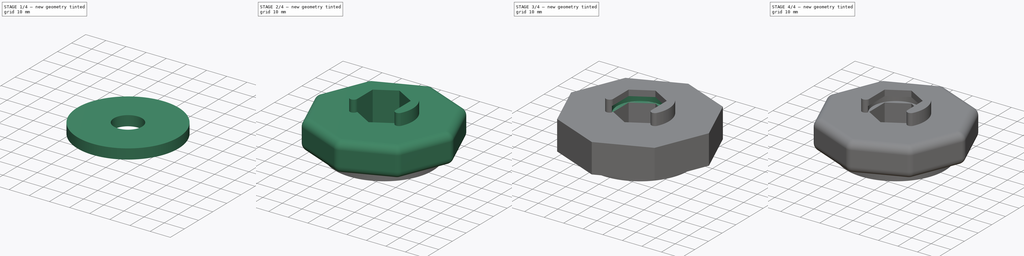
[diagram: build sequence overview — one tinted view per stage of 4, left to right]
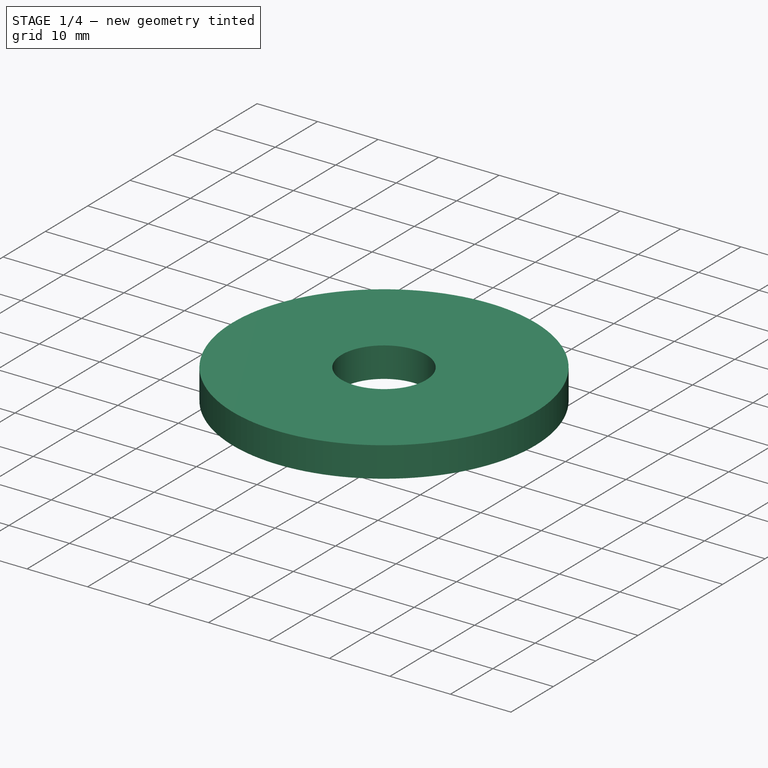
[diagram: stage 1 of 4 — iso view after this stage's code; geometry added in this stage tinted green]
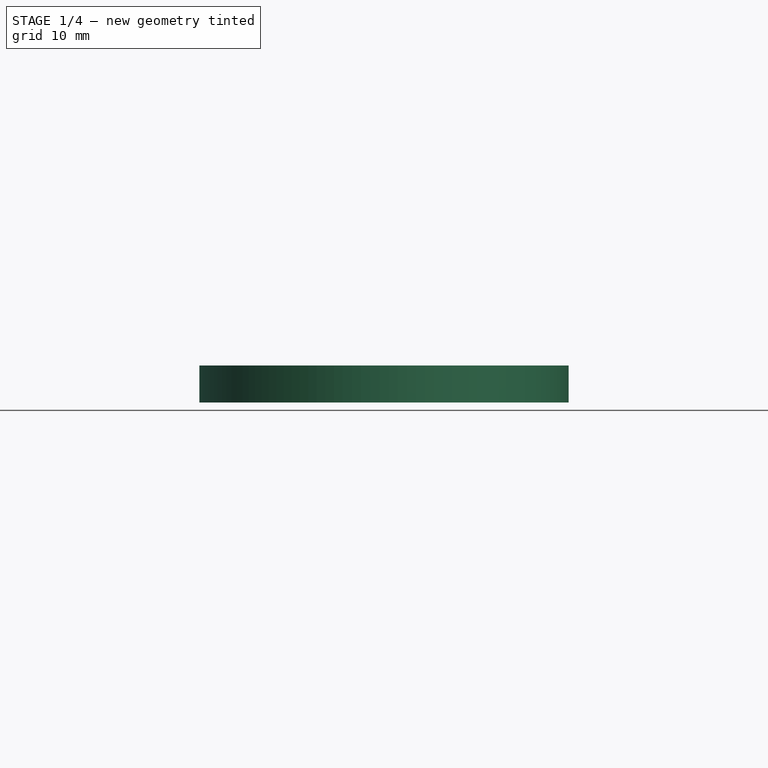
[diagram: stage 1 of 4 — front view after this stage's code; geometry added in this stage tinted green]
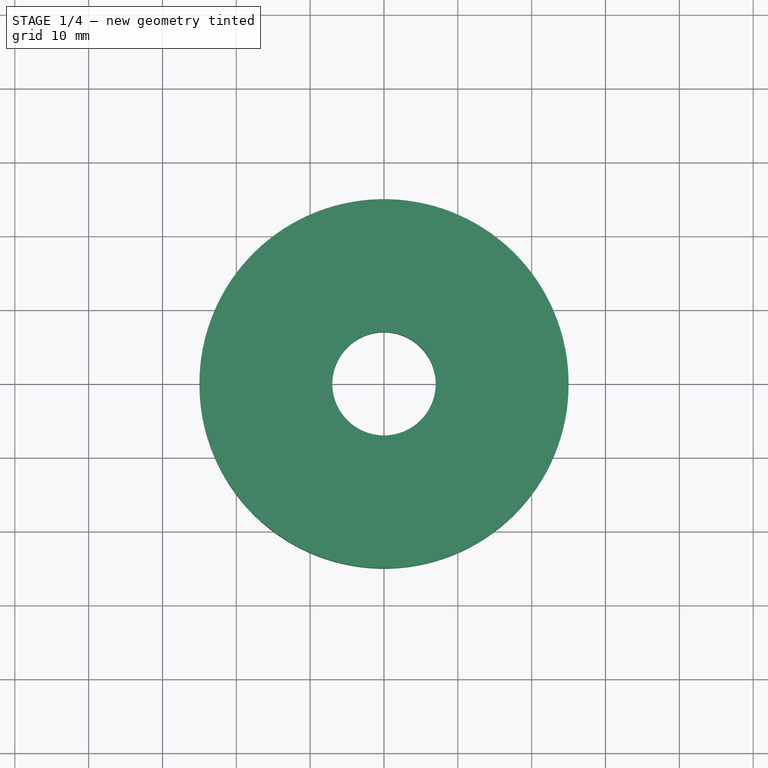
[diagram: stage 1 of 4 — top view after this stage's code; geometry added in this stage tinted green]
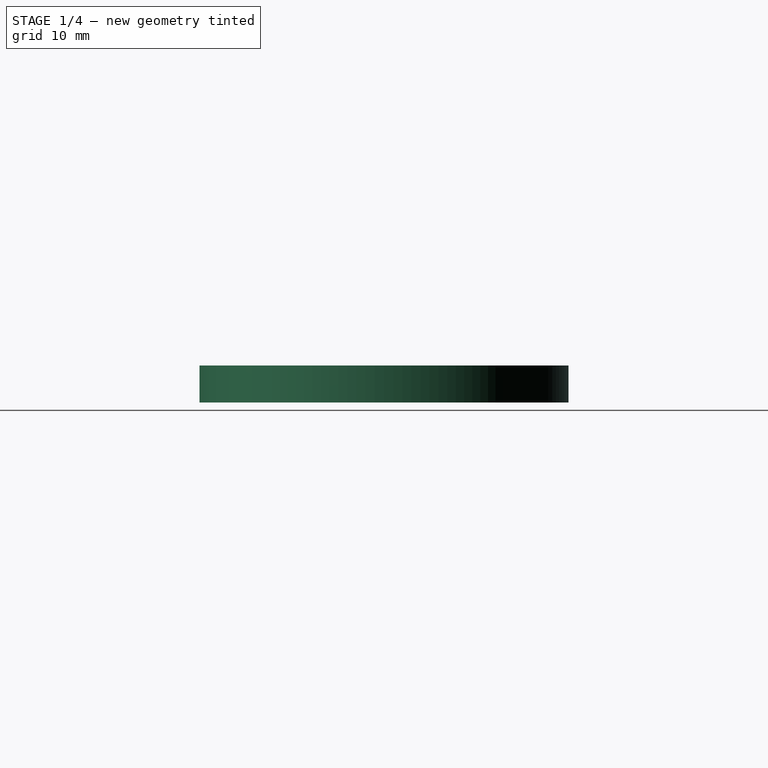
[diagram: stage 1 of 4 — right view after this stage's code; geometry added in this stage tinted green]
FCSTD DOCUMENT  (FreeCAD 0.20R29177 (Git))
Label: Hand Knobs
License: All rights reserved
LicenseURL: http://en.wikipedia.org/wiki/All_rights_reserved
objects: Sketcher::SketchObject×7, PartDesign::Pad×6, PartDesign::Body×3, PartDesign::Fillet×2, Spreadsheet::Sheet×1, PartDesign::Chamfer×1, PartDesign::Pocket×1
note: 30 computed .brp shape members not serialized (recipe doc carries the construction recipe); baked Part::Feature solids carry a one-line shape summary decoded from their .brp

FEATURE [PartDesign::Body] Body  label="Hex head Bolt"
  Group = -> [Sketch,Pad,Sketch001,Pad001,Fillet,Chamfer]
  Origin = -> Origin
  Tip = -> Chamfer
FEATURE [Sketcher::SketchObject] Sketch002
  FullyConstrained = true
  MapMode = 5
  Support = -> [XY_Plane001]
  expr: Constraints[2] = Spreadsheet.bolt_hole_size
  expr: Constraints[7] = Spreadsheet.Shoulder_diameter
  sketch-geometry (4):
    g0: Circle CenterX=0 CenterY=0 CenterZ=0 NormalX=0 NormalY=0 NormalZ=1 AngleXU=0 Radius=7
    g1: Circle CenterX=0 CenterY=0 CenterZ=0 NormalX=0 NormalY=0 NormalZ=1 AngleXU=0 Radius=25
    g2: GeomPoint X=-7 Y=0 Z=0
    g3: GeomPoint X=25 Y=0 Z=0
  constraints (8):
    c: Coincident(g0,g-1)
    c: Coincident(g1,g0)
    c: Diameter(g0) = 14
    c: PointOnObject(g2,g0)
    c: PointOnObject(g2,g-1)
    c: PointOnObject(g3,g1)
    c: PointOnObject(g3,g-1)
    c: DistanceX(g2,g3) = 32
FEATURE [PartDesign::Pad] Pad002
  Direction = (0,0,1)
  Length = 5
  Length2 = 10
  Profile = -> Sketch002
  ReferenceAxis = -> Sketch002 [N_Axis]
  Type = 0
  expr: Length = Spreadsheet.Shoulder_height
FEATURE [PartDesign::Body] Body001  label="Hex head Nut"
  Group = -> [Sketch002,Pad002,Sketch003,Pad003,Fillet001,Sketch004,Pad004,Sketch005,Pocket]
  Origin = -> Origin001
  Placement = pos=(80,0,0) rot=(0,0,1;0rad)
  Tip = -> Pocket
FEATURE [Sketcher::SketchObject] Sketch006
  FullyConstrained = true
  MapMode = 5
  Support = -> [XY_Plane002]
  expr: Constraints[11] = Spreadsheet.spring_clip_gap
  expr: Constraints[5] = Spreadsheet.springclip_inner_diameter
  expr: Constraints[6] = Spreadsheet.spring_clip_outer_diameter
  sketch-geometry (4):
    g0: ArcOfCircle CenterX=0 CenterY=0 CenterZ=0 NormalX=0 NormalY=0 NormalZ=1 AngleXU=0 Radius=11.75 StartAngle=5.01485 EndAngle=10.6931
    g1: ArcOfCircle CenterX=0 CenterY=0 CenterZ=0 NormalX=0 NormalY=0 NormalZ=1 AngleXU=0 Radius=7.5 StartAngle=5.19791 EndAngle=10.5101
    g2: LineSegment StartX=-3.5 StartY=-6.63325 StartZ=0 EndX=-3.5 EndY=-11.2166 EndZ=0
    g3: LineSegment StartX=3.5 StartY=-6.63325 StartZ=0 EndX=3.5 EndY=-11.2166 EndZ=0
  constraints (12):
    c: Coincident(g0,g-1)
    c: Coincident(g1,g0)
    c: Vertical(g2)
    c: Vertical(g3)
    c: Equal(g3,g2)
    c: Diameter(g1) = 15
    c: Diameter(g0) = 23.5
    c: Coincident(g1,g2)
    c: Coincident(g1,g3)
    c: Coincident(g0,g2)
    c: Coincident(g0,g3)
    c: Distance(g0,g0) = 7
FEATURE [PartDesign::Pad] Pad005
  Direction = (0,0,1)
  Length = 2
  Length2 = 10
  Profile = -> Sketch006
  ReferenceAxis = -> Sketch006 [N_Axis]
  Type = 0
  expr: Length = Spreadsheet.spring_clip_height_gap
FEATURE [PartDesign::Body] Body002  label="spring clip"
  Group = -> [Sketch006,Pad005]
  Origin = -> Origin002
  Placement = pos=(80,0,20) rot=(0,0,1;0rad)
  Tip = -> Pad005
  expr: .Placement.Base.x = Spreadsheet.distance_between_parts
  expr: .Placement.Base.z = Spreadsheet.springplacement
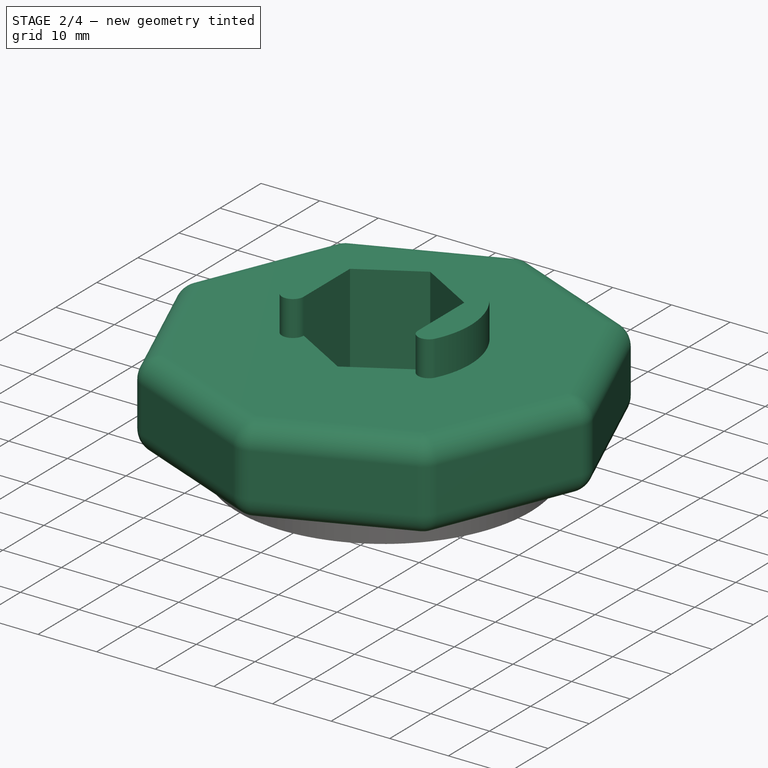
[diagram: stage 2 of 4 — iso view after this stage's code; geometry added in this stage tinted green]
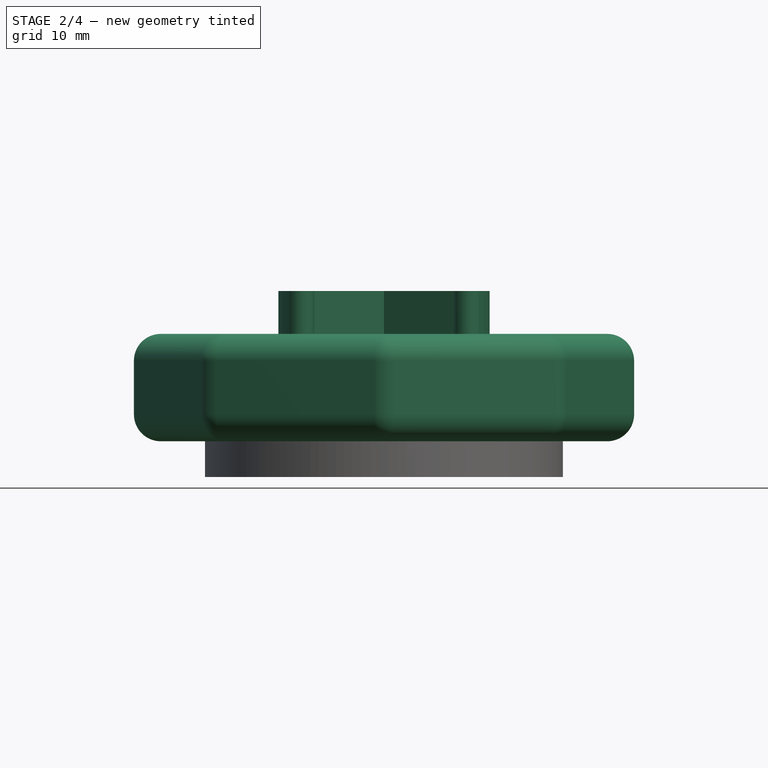
[diagram: stage 2 of 4 — front view after this stage's code; geometry added in this stage tinted green]
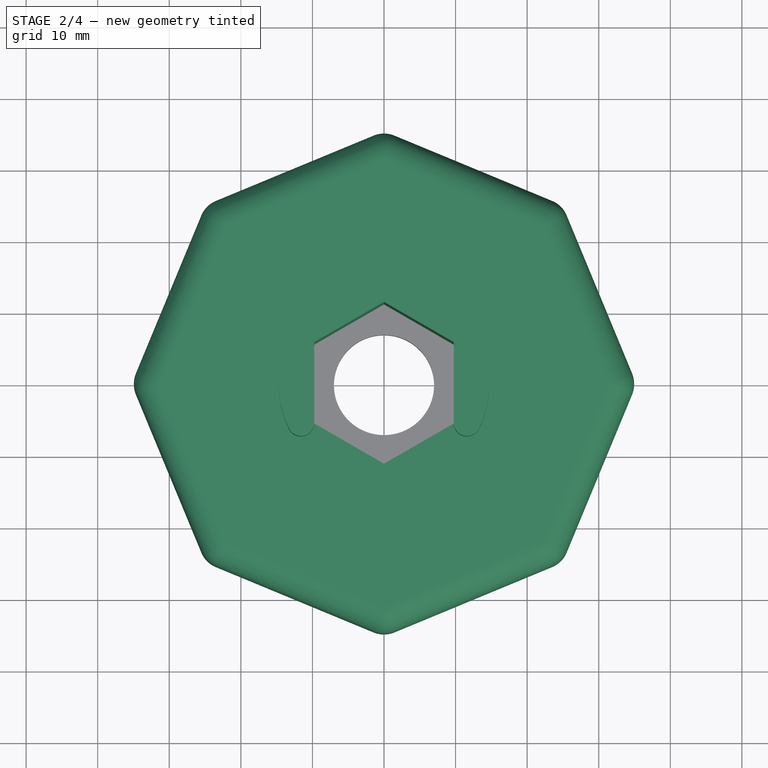
[diagram: stage 2 of 4 — top view after this stage's code; geometry added in this stage tinted green]
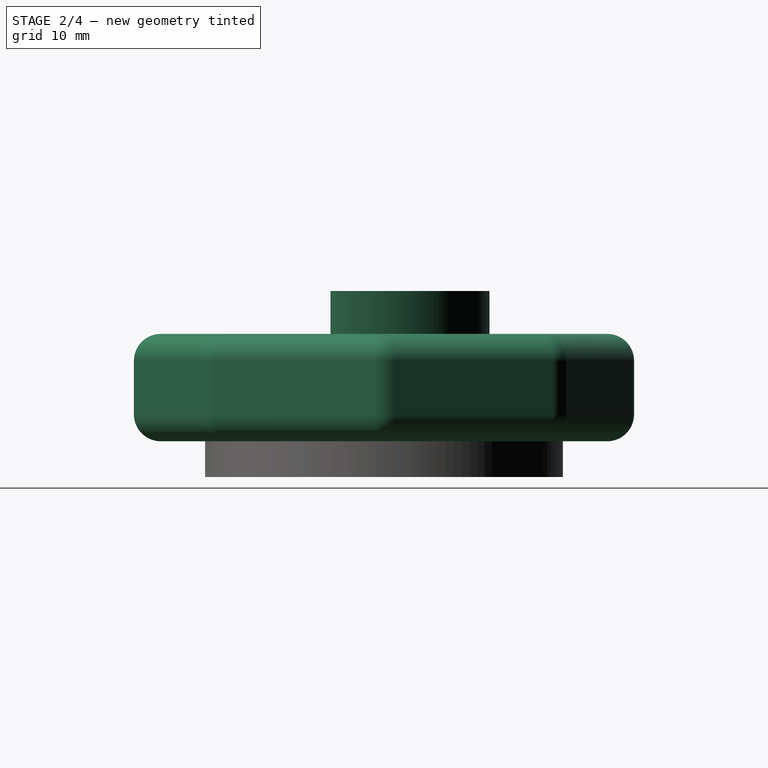
[diagram: stage 2 of 4 — right view after this stage's code; geometry added in this stage tinted green]
FEATURE [Sketcher::SketchObject] Sketch003
  FullyConstrained = true
  MapMode = 5
  Placement = pos=(0,0,5) rot=(0,0,1;0rad)
  Support = -> [Pad002]
  expr: Constraints[44] = Spreadsheet.Hand_nut_head_size
  expr: Constraints[45] = Spreadsheet.bolt_hole_head_size
  sketch-geometry (16):
    g0: LineSegment StartX=0 StartY=-11.2583 StartZ=0 EndX=9.75 EndY=-5.62917 EndZ=0
    g1: LineSegment StartX=9.75 StartY=-5.62917 StartZ=0 EndX=9.75 EndY=5.62917 EndZ=0
    g2: LineSegment StartX=9.75 StartY=5.62917 StartZ=0 EndX=-1.01998e-11 EndY=11.2583 EndZ=0
    g3: LineSegment StartX=-1.01998e-11 StartY=11.2583 StartZ=0 EndX=-9.75 EndY=5.62917 EndZ=0
    g4: LineSegment StartX=-9.75 StartY=5.62917 StartZ=0 EndX=-9.75 EndY=-5.62917 EndZ=0
    g5: LineSegment StartX=-9.75 StartY=-5.62917 StartZ=0 EndX=0 EndY=-11.2583 EndZ=0
    g6: Circle CenterX=0 CenterY=0 CenterZ=0 NormalX=0 NormalY=0 NormalZ=1 AngleXU=0 Radius=11.2583
    g7: LineSegment StartX=0 StartY=-35.25 StartZ=0 EndX=24.9255 EndY=-24.9255 EndZ=0
    g8: LineSegment StartX=24.9255 StartY=-24.9255 StartZ=0 EndX=35.25 EndY=0 EndZ=0
    g9: LineSegment StartX=35.25 StartY=0 StartZ=0 EndX=24.9255 EndY=24.9255 EndZ=0
    g10: LineSegment StartX=24.9255 StartY=24.9255 StartZ=0 EndX=3.6e-15 EndY=35.25 EndZ=0
    g11: LineSegment StartX=3.6e-15 StartY=35.25 StartZ=0 EndX=-24.9255 EndY=24.9255 EndZ=0
    g12: LineSegment StartX=-24.9255 StartY=24.9255 StartZ=0 EndX=-35.25 EndY=0 EndZ=0
    g13: LineSegment StartX=-35.25 StartY=0 StartZ=0 EndX=-24.9255 EndY=-24.9255 EndZ=0
    g14: LineSegment StartX=-24.9255 StartY=-24.9255 StartZ=0 EndX=0 EndY=-35.25 EndZ=0
    g15: Circle CenterX=0 CenterY=0 CenterZ=0 NormalX=0 NormalY=0 NormalZ=1 AngleXU=0 Radius=35.25
  constraints (36):
    c: Coincident(g0,g1)
    c: Coincident(g1,g2)
    c: Coincident(g2,g3)
    c: Coincident(g3,g4)
    c: Coincident(g4,g5)
    c: Coincident(g5,g0)
    c: Equal(g0, g1-g5) x5
    c: PointOnObject(g0,g6)
    c: PointOnObject(g1,g6)
    c: PointOnObject(g2,g6)
    c: PointOnObject(g3,g6)
    c: PointOnObject(g4,g6)
    c: PointOnObject(g5,g6)
    c: Coincident(g6,g-1)
    c: PointOnObject(g5,g-2)
    c: Coincident(g7,g8)
    c: Coincident(g8,g9)
    c: Coincident(g9,g10)
    c: Coincident(g10,g11)
    c: Coincident(g11,g12)
    c: Coincident(g12,g13)
    c: Coincident(g13,g14)
    c: Coincident(g14,g7)
    c: Equal(g7, g8-g14) x7
    c: PointOnObject(g7,g15)
    c: PointOnObject(g8,g15)
    c: PointOnObject(g9,g15)
    c: PointOnObject(g10,g15)
    c: PointOnObject(g11,g15)
    c: PointOnObject(g12,g15)
    c: PointOnObject(g13,g15)
    c: PointOnObject(g14,g15)
    c: Coincident(g15,g6)
    c: PointOnObject(g14,g-2)
    c: Distance(g12,g8) = 70.5
    c: DistanceX(g3,g1) = 19.5
FEATURE [PartDesign::Pad] Pad003
  BaseFeature = -> Pad002
  Direction = (0,0,1)
  Length = 15
  Length2 = 10
  Profile = -> Sketch003
  ReferenceAxis = -> Sketch003 [N_Axis]
  Type = 0
  expr: Length = Spreadsheet.head_height
FEATURE [PartDesign::Fillet] Fillet001
  Base = -> Pad003 [Face6,Face8,Face5,Face7,Face9,Face11,Face12,Face10]
  BaseFeature = -> Pad003
  Radius = 3.75
  SupportTransform = false
  UseAllEdges = false
  expr: Radius = Spreadsheet.fillet_roundness
FEATURE [Sketcher::SketchObject] Sketch004
  FullyConstrained = true
  MapMode = 5
  Placement = pos=(0,0,20) rot=(0,0,1;0rad)
  Support = -> [Fillet001]
  expr: Constraints[20] = Spreadsheet.bolt_hole_head_size
  expr: Constraints[26] = Spreadsheet.springclip_holder_outer_diameter
  sketch-geometry (10):
    g0: LineSegment StartX=0 StartY=-11.2583 StartZ=0 EndX=9.75 EndY=-5.62917 EndZ=0
    g1: LineSegment StartX=9.75 StartY=-5.62917 StartZ=0 EndX=9.75 EndY=5.62917 EndZ=0
    g2: LineSegment StartX=9.75 StartY=5.62917 StartZ=0 EndX=1.8e-15 EndY=11.2583 EndZ=0
    g3: LineSegment StartX=1.8e-15 StartY=11.2583 StartZ=0 EndX=-9.75 EndY=5.62917 EndZ=0
    g4: LineSegment StartX=-9.75 StartY=5.62917 StartZ=0 EndX=-9.75 EndY=-5.62917 EndZ=0
    g5: LineSegment StartX=-9.75 StartY=-5.62917 StartZ=0 EndX=0 EndY=-11.2583 EndZ=0
    g6: Circle CenterX=0 CenterY=0 CenterZ=0 NormalX=0 NormalY=0 NormalZ=1 AngleXU=0 Radius=11.2583
    g7: ArcOfCircle CenterX=0 CenterY=0 CenterZ=0 NormalX=0 NormalY=0 NormalZ=1 AngleXU=0 Radius=14.75 StartAngle=5.8315 EndAngle=9.87646
    g8: ArcOfCircle CenterX=-11.6033 CenterY=-5.62917 CenterZ=0 NormalX=0 NormalY=0 NormalZ=1 AngleXU=0 Radius=1.85332 StartAngle=3.59328 EndAngle=6.28319
    g9: ArcOfCircle CenterX=11.6033 CenterY=-5.62917 CenterZ=0 NormalX=0 NormalY=0 NormalZ=1 AngleXU=0 Radius=1.85332 StartAngle=3.14159 EndAngle=5.8315
  constraints (23):
    c: Coincident(g0,g1)
    c: Coincident(g1,g2)
    c: Coincident(g2,g3)
    c: Coincident(g3,g4)
    c: Coincident(g4,g5)
    c: Coincident(g5,g0)
    c: Equal(g0, g1-g5) x5
    c: PointOnObject(g0,g6)
    c: PointOnObject(g1,g6)
    c: PointOnObject(g2,g6)
    c: PointOnObject(g3,g6)
    c: PointOnObject(g4,g6)
    c: PointOnObject(g5,g6)
    c: Coincident(g6,g-1)
    c: PointOnObject(g5,g-2)
    c: Coincident(g7,g6)
    c: Distance(g3,g1) = 19.5
    c: Tangent(g8,g4) = 1.5708
    c: Tangent(g9,g1) = 1.5708
    c: Equal(g8,g9)
    c: Coincident(g7,g8)
    c: Tangent(g7,g9) = -1.5708
    c: Diameter(g7) = 29.5
FEATURE [PartDesign::Pad] Pad004
  BaseFeature = -> Fillet001
  Direction = (0,0,1)
  Length = 6
  Length2 = 10
  Profile = -> Sketch004
  ReferenceAxis = -> Sketch004 [N_Axis]
  Type = 0
  expr: Length = Spreadsheet.spring_clip_holder_height
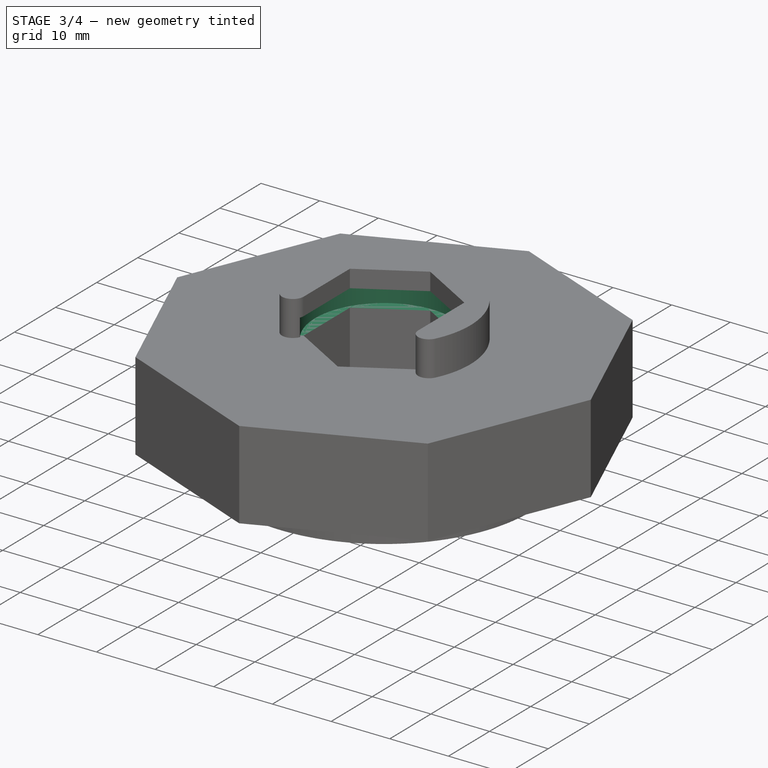
[diagram: stage 3 of 4 — iso view after this stage's code; geometry added in this stage tinted green]
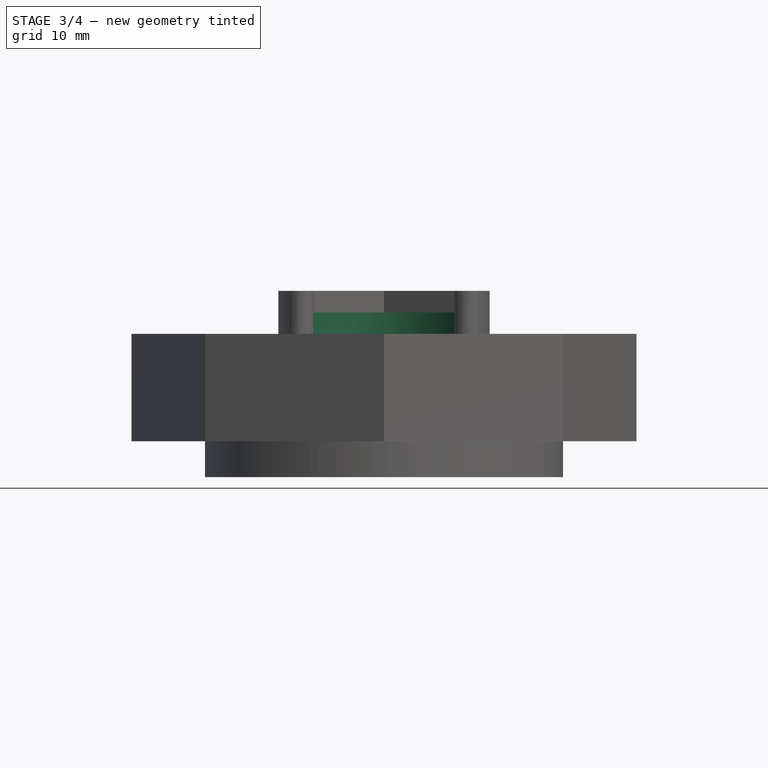
[diagram: stage 3 of 4 — front view after this stage's code; geometry added in this stage tinted green]
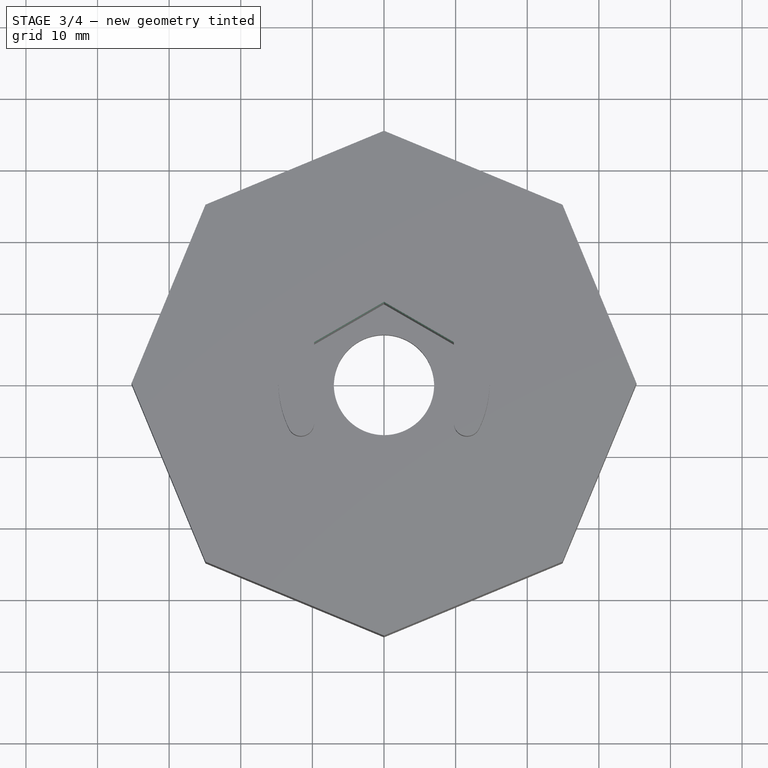
[diagram: stage 3 of 4 — top view after this stage's code; geometry added in this stage tinted green]
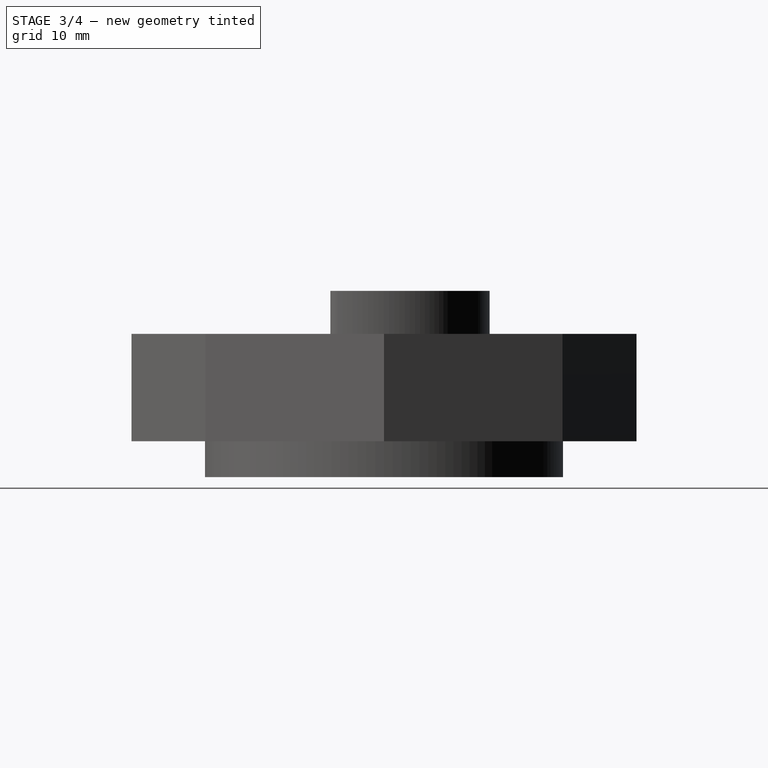
[diagram: stage 3 of 4 — right view after this stage's code; geometry added in this stage tinted green]
FEATURE [Spreadsheet::Sheet] Spreadsheet  label="Hex hardware"
  cells = A1=Dimension type; F1=Metric bolts (coarse); G1=head size; H1=pitch; I1=clearance drill; J1=tap drill; K1=tinseile stress area; M1=Metric bolts fine thread; N1=pitch; O1=tap drill; P1=tinsile strength; F2=M 1.6 ; H2=0.35; I2=1.8; J2=1.25; M2=M 1.0 x 0.2 ; N2=0.2; O2=0.8; F3=M 2 ; H3=0.4; I3=2.4; J3=1.6; M3=M 1.1 x 0.2 ; N3=0.2; O3=0.9; A4=Bolt head size; B4(head_size)=18.5; D4=Measured accrost from one flat to the opposing side; F4=M 2.5 ; H4=0.45; I4=2.9; J4=2; M4=M 1.2 x 0.2 ; N4=0.2; O4=1; A5=bolt size; B5(thread_size)=14; D5=bolt thread size; F5=M 3 ; G5=5.5; H5=0.5; I5=3.4; J5=2.5; M5=M 1.4 x 0.2 ; N5=0.2; O5=1.2; A6=knob height; B6(knob_height)==B10 + B11; D6=how high you want the knob; F6=M 3.5 ; H6=0.6; I6=3.9; J6=2.9; M6=M 1.6 x 0.2 ; N6=0.2; O6=1.4; A7=shoulder diameter; B7(Shoulder_diameter)==(B12 / 2 + B20) * 2; D7=how thick the shoulder is; F7=M 4 ; G7=7; H7=0.7; I7=4.5; J7=3.3; K7=8.779999999999999; M7=M 1.8 x 0.2 ; N7=0.2; O7=1.6; F8=M 5 ; G8=8; H8=0.8; I8=5.5; J8=4.2; K8=14.2; M8=M 2 x 0.25 ; N8=0.25; O8=1.75; F9=M 6 ; G9=10; H9=1; I9=6.6; J9=5; K9=20.1; M9=M 2.2 x 0.25 ; N9=0.25; O9=1.95; A10=sholder height; B10(Shoulder_height)=5; D10=how tall the shoulder of the hand nut is; F10=M 8 ; G10=13; H10=1.25; I10=9; J10=6.8; K10=36.6; M10=M 2.5 x 0.35 ; N10=0.35; O10=2.1; A11=head height; B11(head_height)=15; D11=how tall the head of the hand nut is; F11=M 10 ; G11=15 , 16; H11=1.5; I11=12; J11=8.5; K11=58; M11=M 3 x 0.35 ; N11=0.35; O11=2.6; A12=bolt hole size; B12(bolt_hole_size)==B5 + B13; D12=how large the final hole will be; F12=M 12 ; G12=18; H12=1.75; I12=14; J12=10.2; K12=84.3; M12=M 3.5 x 0.35 ; N12=0.35; O12=3.1; A13=bolt hole extr area; B13(bolt_hole_extra)=0; D13=area added around bolt hole to allow for threads to fit though; F13=M 14 ; G13=21; H13=2; I13=16; J13=12; M13=M 4 x 0.5 ; N13=0.5; O13=3.5; A14=fillet rounding value; B14(fillet_roundness)==B11 / 4; D14=how rounded the edges of the knob are; F14=M 16 ; G14=24; H14=2; I14=18; J14=14; K14=157; M14=M 4.5 x 0.5 ; N14=0.5; O14=4; A15=hand nut head size; B15(Hand_nut_head_size)==B4 + B7 + B16; D15=the size of the hand nut; F15=M 20 ; G15=30; H15=2.5; I15=22; J15=17.5; K15=245; M15=M 5 x 0.5 ; N15=0.5; O15=4.5; A16=hand nut extra; B16(Hand_nut_extra)=20; F16=M 22 ; H16=2.5; I16=25; J16=19.5; M16=M 5.5 x 0.5 ; N16=0.5; O16=5; A17=bolt head hole size; B17(bolt_hole_head_size)==B4 + B18; F17=M 24 ; G17=36; H17=3; I17=27; J17=21; K17=353; M17=M 6 x 0.75 ; N17=0.75; O17=5.2; P17=20.1; A18=bolt head extra size; B18(bolt_head_extra_size)=1; D18=added area to the bolt head for fitment; F18=M 27 ; H18=3; I18=30; J18=24; M18=M 7 x 0.75 ; N18=0.75; O18=6.2; A19=bolt head chamfer; B19(bolt_head_chamfer)=1; F19=M 30 ; G19=46; H19=3.5; I19=33; J19=26.5; K19=561; M19=M 8 x 0.75 ; N19=0.75; O19=7.2; A20=Shoulder thickness; +532 more cells
FEATURE [Sketcher::SketchObject] Sketch
  FullyConstrained = true
  MapMode = 5
  Support = -> [XY_Plane]
  expr: Constraints[2] = Spreadsheet.bolt_hole_size
  expr: Constraints[7] = Spreadsheet.Shoulder_diameter
  sketch-geometry (4):
    g0: Circle CenterX=0 CenterY=0 CenterZ=0 NormalX=0 NormalY=0 NormalZ=1 AngleXU=0 Radius=7
    g1: Circle CenterX=0 CenterY=0 CenterZ=0 NormalX=0 NormalY=0 NormalZ=1 AngleXU=0 Radius=25
    g2: GeomPoint X=-7 Y=0 Z=0
    g3: GeomPoint X=25 Y=0 Z=0
  constraints (8):
    c: Coincident(g0,g-1)
    c: Coincident(g1,g0)
    c: Diameter(g0) = 14
    c: PointOnObject(g2,g0)
    c: PointOnObject(g2,g-1)
    c: PointOnObject(g3,g1)
    c: PointOnObject(g3,g-1)
    c: Distance(g2,g3) = 32
FEATURE [PartDesign::Pad] Pad
  Direction = (0,0,1)
  Length = 5
  Length2 = 10
  Profile = -> Sketch
  ReferenceAxis = -> Sketch [N_Axis]
  Type = 0
  expr: Length = Spreadsheet.Shoulder_height
FEATURE [Sketcher::SketchObject] Sketch001
  ExternalGeometry = -> [Pad]
  FullyConstrained = true
  MapMode = 5
  Placement = pos=(0,0,5) rot=(0,0,1;0rad)
  Support = -> [Pad]
  expr: Constraints[44] = Spreadsheet.bolt_hole_head_size
  expr: Constraints[45] = Spreadsheet.Hand_nut_head_size
  sketch-geometry (16):
    g0: LineSegment StartX=35.25 StartY=0 StartZ=0 EndX=24.9255 EndY=24.9255 EndZ=0
    g1: LineSegment StartX=24.9255 StartY=24.9255 StartZ=0 EndX=-3.6e-15 EndY=35.25 EndZ=0
    g2: LineSegment StartX=-3.6e-15 StartY=35.25 StartZ=0 EndX=-24.9255 EndY=24.9255 EndZ=0
    g3: LineSegment StartX=-24.9255 StartY=24.9255 StartZ=0 EndX=-35.25 EndY=-3.6e-15 EndZ=0
    g4: LineSegment StartX=-35.25 StartY=-3.6e-15 StartZ=0 EndX=-24.9255 EndY=-24.9255 EndZ=0
    g5: LineSegment StartX=-24.9255 StartY=-24.9255 StartZ=0 EndX=0 EndY=-35.25 EndZ=0
    g6: LineSegment StartX=0 StartY=-35.25 StartZ=0 EndX=24.9255 EndY=-24.9255 EndZ=0
    g7: LineSegment StartX=24.9255 StartY=-24.9255 StartZ=0 EndX=35.25 EndY=0 EndZ=0
    g8: Circle CenterX=0 CenterY=0 CenterZ=0 NormalX=0 NormalY=0 NormalZ=1 AngleXU=0 Radius=35.25
    g9: LineSegment StartX=0 StartY=11.2583 StartZ=0 EndX=-9.75 EndY=5.62917 EndZ=0
    g10: LineSegment StartX=-9.75 StartY=5.62917 StartZ=0 EndX=-9.75 EndY=-5.62917 EndZ=0
    g11: LineSegment StartX=-9.75 StartY=-5.62917 StartZ=0 EndX=0 EndY=-11.2583 EndZ=0
    g12: LineSegment StartX=0 StartY=-11.2583 StartZ=0 EndX=9.75 EndY=-5.62917 EndZ=0
    g13: LineSegment StartX=9.75 StartY=-5.62917 StartZ=0 EndX=9.75 EndY=5.62917 EndZ=0
    g14: LineSegment StartX=9.75 StartY=5.62917 StartZ=0 EndX=0 EndY=11.2583 EndZ=0
    g15: Circle CenterX=0 CenterY=0 CenterZ=0 NormalX=0 NormalY=0 NormalZ=1 AngleXU=0 Radius=11.2583
  constraints (36):
    c: Coincident(g0,g1)
    c: Coincident(g1,g2)
    c: Coincident(g2,g3)
    c: Coincident(g3,g4)
    c: Coincident(g4,g5)
    c: Coincident(g5,g6)
    c: Coincident(g6,g7)
    c: Coincident(g7,g0)
    c: Equal(g0, g1-g7) x7
    c: PointOnObject(g0,g8)
    c: PointOnObject(g1,g8)
    c: PointOnObject(g2,g8)
    c: PointOnObject(g3,g8)
    c: PointOnObject(g4,g8)
    c: PointOnObject(g5,g8)
    c: PointOnObject(g6,g8)
    c: PointOnObject(g7,g8)
    c: Coincident(g8,g-1)
    c: PointOnObject(g7,g-1)
    c: Coincident(g9,g10)
    c: Coincident(g10,g11)
    c: Coincident(g11,g12)
    c: Coincident(g12,g13)
    c: Coincident(g13,g14)
    c: Coincident(g14,g9)
    c: Equal(g9, g10-g14) x5
    c: PointOnObject(g9,g15)
    c: PointOnObject(g10,g15)
    c: PointOnObject(g11,g15)
    c: PointOnObject(g12,g15)
    c: PointOnObject(g13,g15)
    c: PointOnObject(g14,g15)
    c: Coincident(g15,g8)
    c: PointOnObject(g14,g-2)
    c: Distance(g12,g10) = 19.5
    c: Distance(g0,g3) = 70.5
FEATURE [PartDesign::Pad] Pad001
  BaseFeature = -> Pad
  Direction = (0,0,1)
  Length = 15
  Length2 = 10
  Profile = -> Sketch001
  ReferenceAxis = -> Sketch001 [N_Axis]
  Type = 0
  expr: Length = Spreadsheet.head_height
FEATURE [Sketcher::SketchObject] Sketch005
  FullyConstrained = true
  MapMode = 5
  Placement = pos=(0,0,20) rot=(0,0,1;0rad)
  Support = -> [Pad004]
  expr: Constraints[1] = Spreadsheet.spring_clip_outer_diameter
  sketch-geometry (1):
    g0: Circle CenterX=0 CenterY=0 CenterZ=0 NormalX=0 NormalY=0 NormalZ=1 AngleXU=0 Radius=11.75
  constraints (2):
    c: Coincident(g0,g-1)
    c: Diameter(g0) = 23.5
FEATURE [PartDesign::Pocket] Pocket
  BaseFeature = -> Pad004
  Direction = (0,0,-1)
  Length = 3
  Length2 = 5
  Profile = -> Sketch005
  ReferenceAxis = -> Sketch005 [N_Axis]
  Reversed = true
  Type = 0
  expr: Length = Spreadsheet.springclip_holder_pocket_height
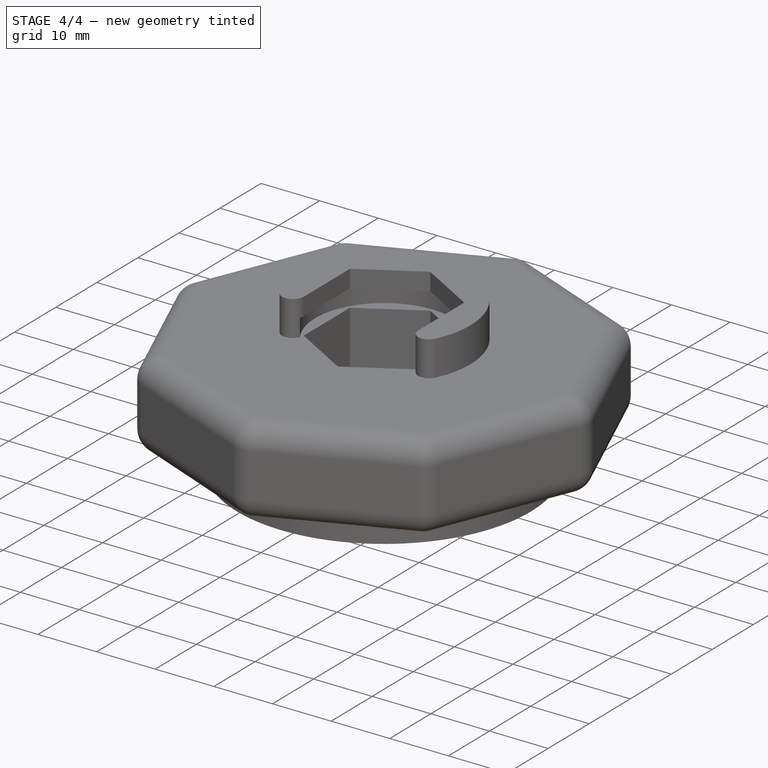
[diagram: stage 4 of 4 — iso view after this stage's code; geometry added in this stage tinted green]
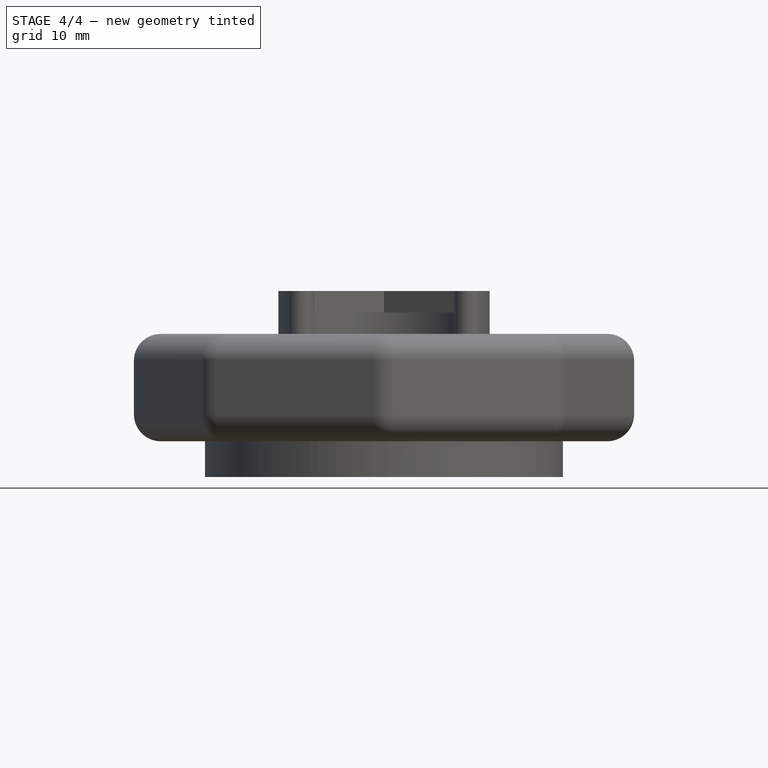
[diagram: stage 4 of 4 — front view after this stage's code; geometry added in this stage tinted green]
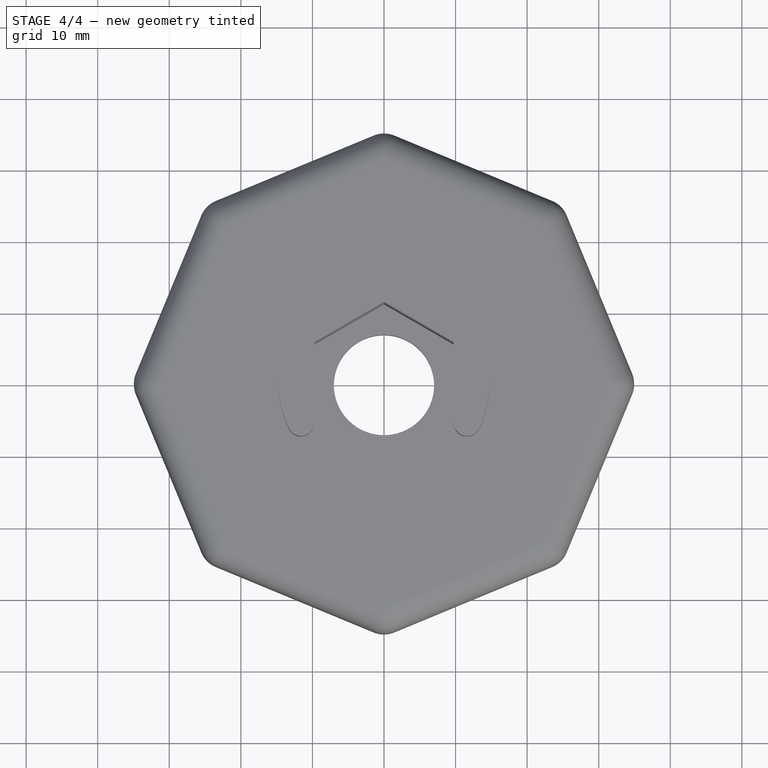
[diagram: stage 4 of 4 — top view after this stage's code; geometry added in this stage tinted green]
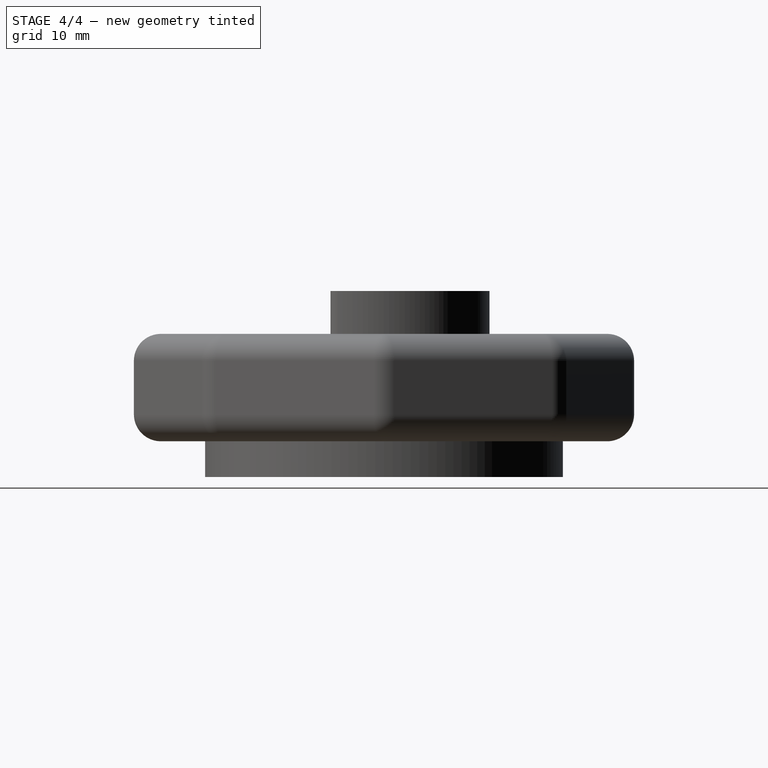
[diagram: stage 4 of 4 — right view after this stage's code; geometry added in this stage tinted green]
FEATURE [PartDesign::Fillet] Fillet
  Base = -> Pad001 [Face6,Face5,Face7,Face9,Face11,Face12,Face10,Face8]
  BaseFeature = -> Pad001
  Radius = 3.75
  SupportTransform = false
  UseAllEdges = false
  expr: Radius = Spreadsheet.fillet_roundness
FEATURE [PartDesign::Chamfer] Chamfer
  Angle = 45
  Base = -> Fillet [Edge113,Edge114,Edge115,Edge116,Edge117,Edge112]
  BaseFeature = -> Fillet
  ChamferType = 0
  FlipDirection = false
  Size = 1
  Size2 = 1
  SupportTransform = false
  UseAllEdges = false
  expr: Size = Spreadsheet.bolt_head_chamfer
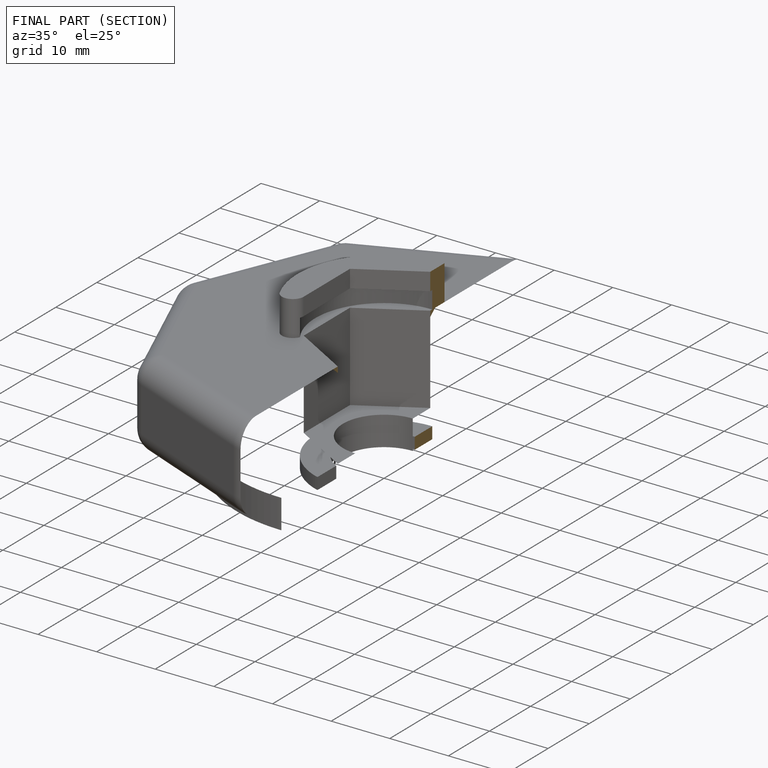
[diagram: finished part — half-section view (interior)]
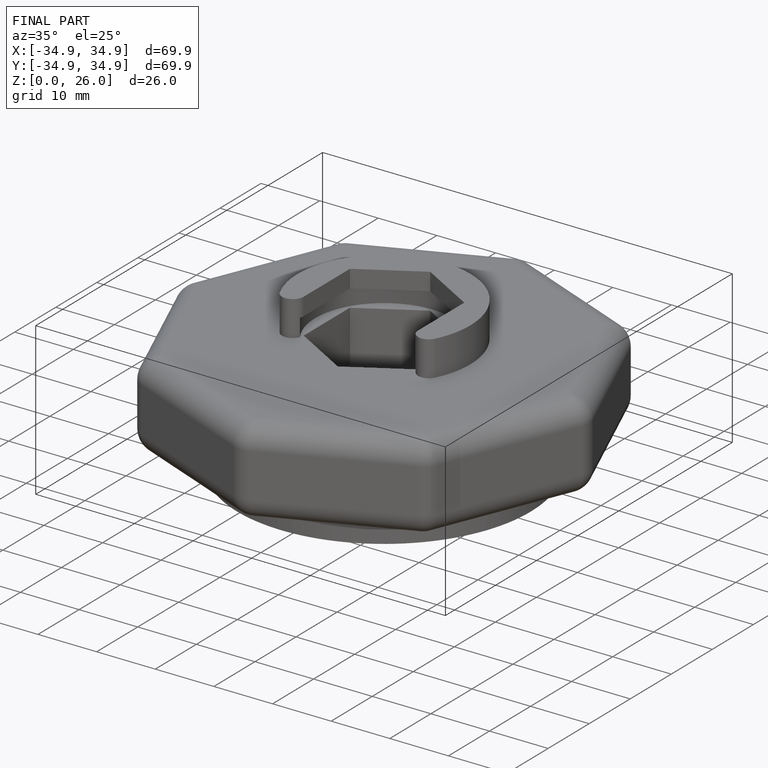
[diagram: finished part — iso view with bounding-box wireframe]
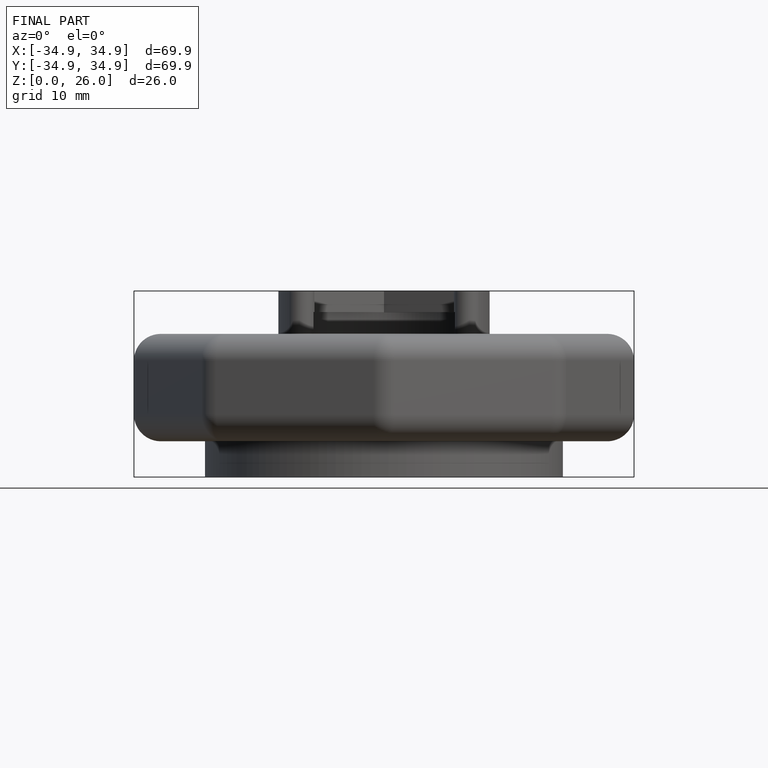
[diagram: finished part — front view with bounding-box wireframe]
